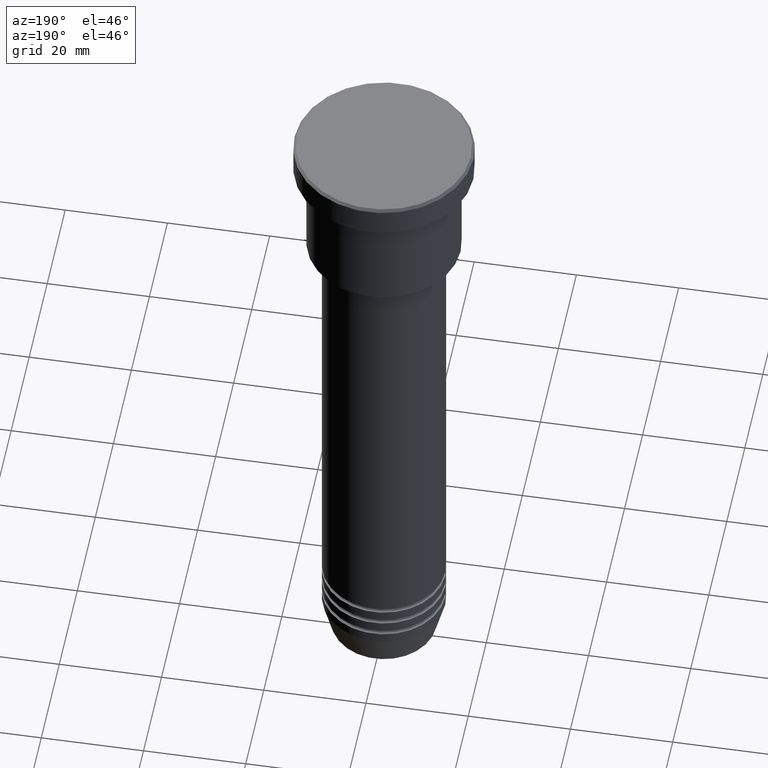
[diagram: clean part render]
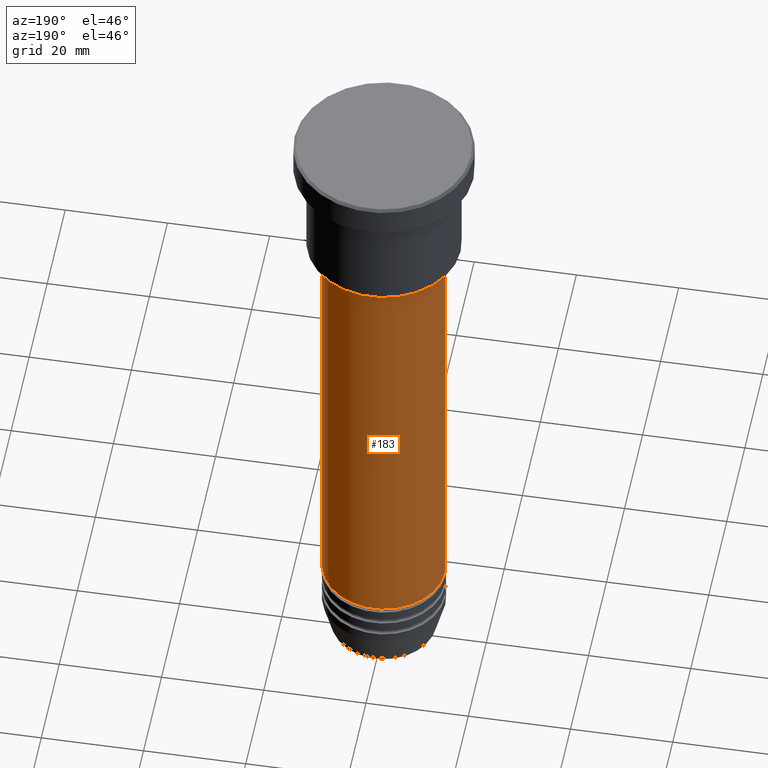
[diagram: same view with one face highlighted and labeled with its STEP entity id]
A machine part, auxiliary view. The second image highlights one B-rep face of the part: STEP entity #183.
In plain terms, the highlighted cylindrical surface (partial cylindrical patch) has radius 12 mm, axis along (-0, -0, 1).
Its self-contained STEP definition (entity closure, byte-faithful):
#42 = AXIS2_PLACEMENT_3D ( 'NONE', #254, #523, #356 ) ;
#107 = EDGE_CURVE ( 'NONE', #772, #309, #239, .T. ) ;
#123 = EDGE_CURVE ( 'NONE', #609, #306, #999, .T. ) ;
#183 = ADVANCED_FACE ( 'NONE', ( #898 ), #531, .T. ) ;
#212 = ORIENTED_EDGE ( 'NONE', *, *, #123, .F. ) ;
#214 = CIRCLE ( 'NONE', #42, 12.00000000000000000 ) ;
#227 = AXIS2_PLACEMENT_3D ( 'NONE', #862, #776, #1143 ) ;
#239 = LINE ( 'NONE', #440, #946 ) ;
#254 = CARTESIAN_POINT ( 'NONE',  ( 0.000000000000000000, 0.000000000000000000, -115.9999999999999574 ) ) ;
#286 = CARTESIAN_POINT ( 'NONE',  ( 12.00000000000000000, 0.000000000000000000, -28.00000000000000355 ) ) ;
#306 = VERTEX_POINT ( 'NONE', #286 ) ;
#309 = VERTEX_POINT ( 'NONE', #653 ) ;
#351 = DIRECTION ( 'NONE',  ( -0.000000000000000000, -0.000000000000000000, 1.000000000000000000 ) ) ;
#356 = DIRECTION ( 'NONE',  ( 1.000000000000000000, 0.000000000000000000, 0.000000000000000000 ) ) ;
#436 = ORIENTED_EDGE ( 'NONE', *, *, #579, .F. ) ;
#440 = CARTESIAN_POINT ( 'NONE',  ( -12.00000000000000000, 1.469576158976823947E-15, 0.000000000000000000 ) ) ;
#476 = CARTESIAN_POINT ( 'NONE',  ( -12.00000000000000000, 1.469576158976823947E-15, -115.9999999999999574 ) ) ;
#488 = DIRECTION ( 'NONE',  ( -0.000000000000000000, -0.000000000000000000, 1.000000000000000000 ) ) ;
#523 = DIRECTION ( 'NONE',  ( -0.000000000000000000, -0.000000000000000000, 1.000000000000000000 ) ) ;
#531 = CYLINDRICAL_SURFACE ( 'NONE', #962, 12.00000000000000000 ) ;
#539 = CARTESIAN_POINT ( 'NONE',  ( 12.00000000000000000, 0.000000000000000000, -115.9999999999999574 ) ) ;
#579 = EDGE_CURVE ( 'NONE', #306, #309, #1029, .T. ) ;
#609 = VERTEX_POINT ( 'NONE', #539 ) ;
#626 = ORIENTED_EDGE ( 'NONE', *, *, #107, .T. ) ;
#653 = CARTESIAN_POINT ( 'NONE',  ( -12.00000000000000000, 1.469576158976823947E-15, -28.00000000000000355 ) ) ;
#687 = EDGE_CURVE ( 'NONE', #609, #772, #214, .T. ) ;
#735 = ORIENTED_EDGE ( 'NONE', *, *, #687, .T. ) ;
#738 = CARTESIAN_POINT ( 'NONE',  ( 0.000000000000000000, 0.000000000000000000, 0.000000000000000000 ) ) ;
#772 = VERTEX_POINT ( 'NONE', #476 ) ;
#776 = DIRECTION ( 'NONE',  ( -0.000000000000000000, -0.000000000000000000, 1.000000000000000000 ) ) ;
#810 = EDGE_LOOP ( 'NONE', ( #735, #626, #436, #212 ) ) ;
#835 = VECTOR ( 'NONE', #351, 1000.000000000000000 ) ;
#862 = CARTESIAN_POINT ( 'NONE',  ( 0.000000000000000000, 0.000000000000000000, -28.00000000000000355 ) ) ;
#889 = DIRECTION ( 'NONE',  ( -0.000000000000000000, -0.000000000000000000, 1.000000000000000000 ) ) ;
#898 = FACE_OUTER_BOUND ( 'NONE', #810, .T. ) ;
#909 = DIRECTION ( 'NONE',  ( 1.000000000000000000, 0.000000000000000000, 0.000000000000000000 ) ) ;
#946 = VECTOR ( 'NONE', #488, 1000.000000000000000 ) ;
#962 = AXIS2_PLACEMENT_3D ( 'NONE', #738, #889, #909 ) ;
#999 = LINE ( 'NONE', #1179, #835 ) ;
#1029 = CIRCLE ( 'NONE', #227, 12.00000000000000000 ) ;
#1143 = DIRECTION ( 'NONE',  ( 1.000000000000000000, 0.000000000000000000, 0.000000000000000000 ) ) ;
#1179 = CARTESIAN_POINT ( 'NONE',  ( 12.00000000000000000, 0.000000000000000000, 0.000000000000000000 ) ) ;